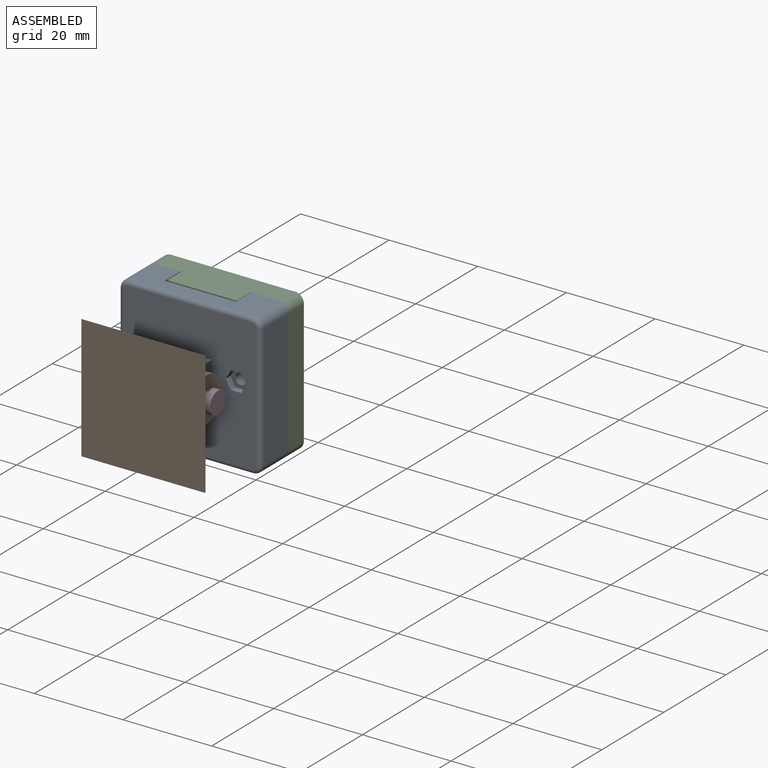
[diagram: assembled view]
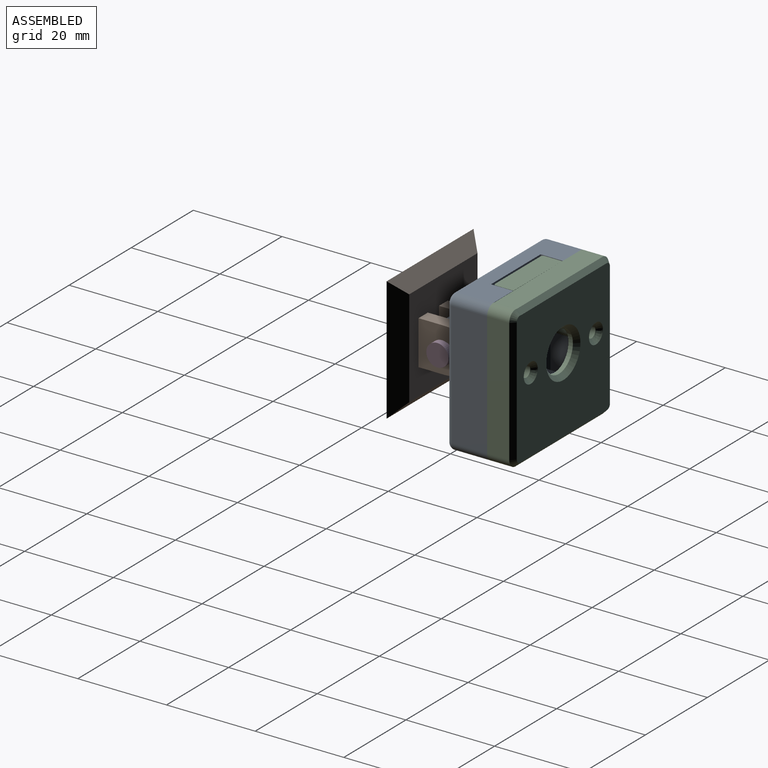
[diagram: assembled view, second angle]
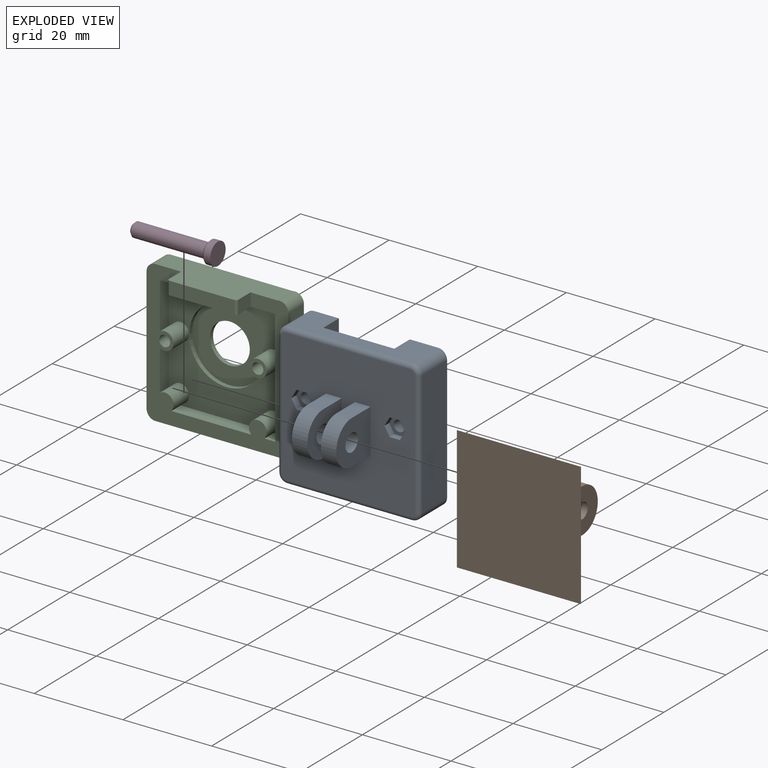
[diagram: exploded view]
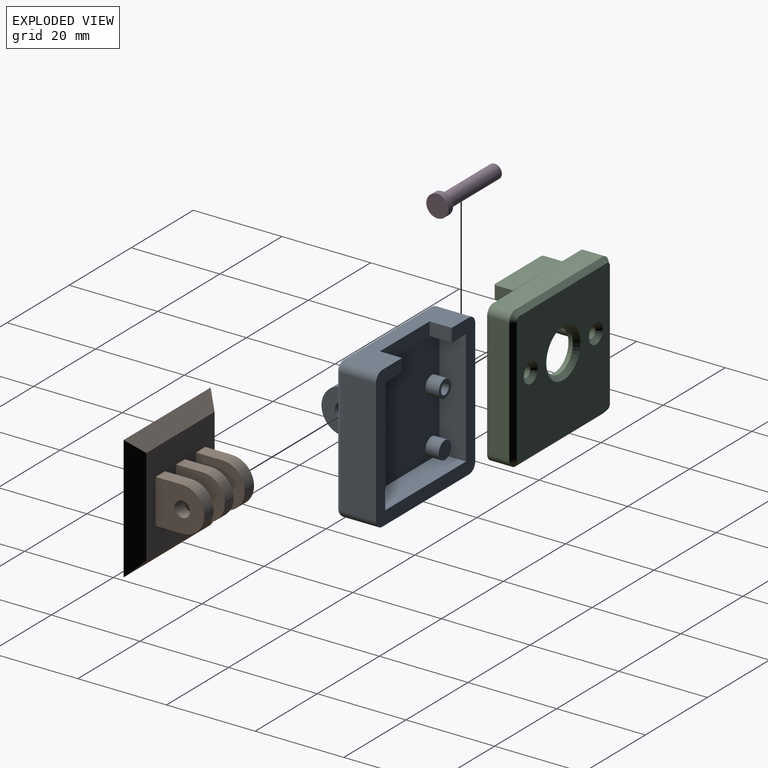
[diagram: exploded view, second angle]
ASSEMBLY  parts=4 mates=3
PART A: 62 faces, bbox 32.3x32.3x20 mm
  f0: plane 30x30mm, normal (0,0,-1), area 801.4mm2, adj f28,f29,f30,f31,f32,f33,f34,f35
  f1: cylinder r=1.25mm len=4.5mm, axis (0,0,-1), area 35.3mm2, adj f14,f61
  f2: cylinder r=1.25mm len=4.5mm, axis (0,0,-1), area 35.3mm2, adj f16,f54
  f3: plane 32x32mm, normal (0,0,1), area 296.6mm2, adj f4,f6,f7,f8,f9,f10,f11,f12
  f4: plane 28x8mm, normal (0,-1,0), area 144mm2, adj f3,f21,f22,f23,f26,f27,f44
  f5: plane 26x26mm, normal (0,0,1), area 625.7mm2, adj f6,f7,f8,f9,f13,f15,f17,f19
  f6: plane 26x6mm, normal (0,-1,0), area 156mm2, adj f3,f5,f7,f9
  f7: plane 26x6mm, normal (1,0,0), area 156mm2, adj f3,f5,f6,f8
  f8: plane 26x6mm, normal (0,1,0), area 76mm2, adj f3,f5,f7,f9,f21,f22,f23
  f9: plane 26x6mm, normal (-1,0,0), area 156mm2, adj f3,f5,f6,f8
  f10: plane 28x8mm, normal (1,0,0), area 224mm2, adj f3,f24,f27,f40
  f11: plane 28x8mm, normal (0,1,0), area 224mm2, adj f3,f24,f25,f43
  f12: plane 28x8mm, normal (-1,0,0), area 224mm2, adj f3,f25,f26,f47
  f13: cylinder r=2mm len=4mm, axis (0,0,-1), area 37.7mm2, adj f5,f14
  f14: plane 4x4mm, normal (0,0,1), area 7.7mm2, adj f1,f13
  f15: cylinder r=2mm len=4mm, axis (0,0,-1), area 37.7mm2, adj f5,f16
  f16: plane 4x4mm, normal (0,0,1), area 7.7mm2, adj f2,f15
  f17: cylinder r=2mm len=4mm, axis (0,0,-1), area 37.7mm2, adj f5,f18
  f18: plane 4x4mm, normal (0,0,1), area 12.6mm2, adj f17
  f19: cylinder r=2mm len=4mm, axis (0,0,-1), area 37.7mm2, adj f5,f20
  f20: plane 4x4mm, normal (0,0,1), area 12.6mm2, adj f19
  f21: plane 5x3mm, normal (1,0,0), area 15mm2, adj f3,f4,f8,f22
  f22: plane 16x3mm, normal (0,0,1), area 48mm2, adj f4,f8,f21,f23
  f23: plane 5x3mm, normal (-1,0,0), area 15mm2, adj f3,f4,f8,f22
  f24: cylinder r=2mm len=8mm, axis (0,0,-1), area 25.1mm2, adj f3,f10,f11,f41
  f25: cylinder r=2mm len=8mm, axis (0,0,1), area 25.1mm2, adj f3,f11,f12,f45
  f26: cylinder r=2mm len=8mm, axis (0,0,-1), area 25.1mm2, adj f3,f4,f12,f46
  f27: cylinder r=2mm len=8mm, axis (0,0,1), area 25.1mm2, adj f3,f4,f10,f42
  f28: plane 11x10mm, normal (1,0,0), area 86.7mm2, adj f0,f29,f31,f37,f39
  f29: plane 6x3.5mm, normal (0,1,0), area 21mm2, adj f0,f28,f30,f37
  f30: plane 11x10mm, normal (-1,0,0), area 86.7mm2, adj f0,f29,f31,f37,f39
  f31: plane 6x3.5mm, normal (0,-1,0), area 21mm2, adj f0,f28,f30,f37
  f32: plane 11x10mm, normal (1,0,0), area 86.7mm2, adj f0,f33,f35,f36,f38
  f33: plane 6x3.5mm, normal (0,1,0), area 21mm2, adj f0,f32,f34,f36
  f34: plane 11x10mm, normal (-1,0,0), area 86.7mm2, adj f0,f33,f35,f36,f38
  f35: plane 6x3.5mm, normal (0,-1,0), area 21mm2, adj f0,f32,f34,f36
  f36: cylinder r=5mm len=10mm, axis (-1,0,0), area 55mm2, adj f32,f33,f34,f35
  f37: cylinder r=5mm len=10mm, axis (-1,0,0), area 55mm2, adj f28,f29,f30,f31
  f38: cylinder r=2mm len=4mm, axis (1,0,0), area 44mm2, adj f32,f34
  f39: cylinder r=2mm len=4mm, axis (1,0,0), area 44mm2, adj f28,f30
  f40: cylinder r=1mm len=28mm, axis (0,1,0), area 44mm2, adj f0,f10,f41,f42
  f41: torus R=1mm, axis (0,0,1), area 4mm2, adj f0,f24,f40,f43
  f42: torus R=1mm, axis (0,0,1), area 4mm2, adj f0,f27,f40,f44
  f43: cylinder r=1mm len=28mm, axis (-1,0,0), area 44mm2, adj f0,f11,f41,f45
  f44: cylinder r=1mm len=28mm, axis (1,0,0), area 44mm2, adj f0,f4,f42,f46
  f45: torus R=1mm, axis (0,0,1), area 4mm2, adj f0,f25,f43,f47
  f46: torus R=1mm, axis (0,0,1), area 4mm2, adj f0,f26,f44,f47
  f47: cylinder r=1mm len=28mm, axis (0,-1,0), area 44mm2, adj f0,f12,f45,f46
  f48: plane 2.31x1.5mm, normal (0,1,0), area 3.5mm2, adj f0,f49,f53,f54
  f49: plane 2x1.5mm, normal (0.87,0.5,0), area 3.5mm2, adj f0,f48,f50,f54
  f50: plane 2x1.5mm, normal (0.87,-0.5,0), area 3.5mm2, adj f0,f49,f51,f54
  f51: plane 2.31x1.5mm, normal (0,-1,0), area 3.5mm2, adj f0,f50,f52,f54
  f52: plane 2x1.5mm, normal (-0.87,-0.5,0), area 3.5mm2, adj f0,f51,f53,f54
  f53: plane 2x1.5mm, normal (-0.87,0.5,0), area 3.5mm2, adj f0,f48,f52,f54
  f54: plane 4.62x4mm, normal (0,0,-1), area 8.9mm2, adj f2,f48,f49,f50,f51,f52,f53
  f55: plane 2.31x1.5mm, normal (0,1,0), area 3.5mm2, adj f0,f56,f60,f61
  f56: plane 2x1.5mm, normal (0.87,0.5,0), area 3.5mm2, adj f0,f55,f57,f61
  f57: plane 2x1.5mm, normal (0.87,-0.5,0), area 3.5mm2, adj f0,f56,f58,f61
  f58: plane 2.31x1.5mm, normal (0,-1,0), area 3.5mm2, adj f0,f57,f59,f61
  f59: plane 2x1.5mm, normal (-0.87,-0.5,0), area 3.5mm2, adj f0,f58,f60,f61
  f60: plane 2x1.5mm, normal (-0.87,0.5,0), area 3.5mm2, adj f0,f55,f59,f61
  f61: plane 4.62x4mm, normal (0,0,-1), area 8.9mm2, adj f1,f55,f56,f57,f58,f59,f60
PART B: 24 faces, bbox 28x28x14 mm
  f0: plane 22x22mm, normal (0,0,-1), area 396mm2, adj f2,f3,f4,f5,f6,f7,f8,f9
  f1: plane 28x28mm, normal (0,0,1), area 784mm2, adj f2,f3,f4,f5
  f2: plane 28x3mm, normal (0.71,0,-0.71), area 106.1mm2, adj f0,f1,f3,f4
  f3: plane 28x3mm, normal (0,-0.71,-0.71), area 106.1mm2, adj f0,f1,f2,f5
  f4: plane 28x3mm, normal (0,0.71,-0.71), area 106.1mm2, adj f0,f1,f2,f5
  f5: plane 28x3mm, normal (-0.71,0,-0.71), area 106.1mm2, adj f0,f1,f3,f4
  f6: plane 6x2.8mm, normal (0,-1,0), area 16.8mm2, adj f0,f7,f9,f19
  f7: plane 11x10mm, normal (-1,0,0), area 89.6mm2, adj f0,f6,f8,f19,f23
  f8: plane 6x2.8mm, normal (0,1,0), area 16.8mm2, adj f0,f7,f9,f19
  f9: plane 11x10mm, normal (1,0,0), area 89.6mm2, adj f0,f6,f8,f19,f23
  f10: plane 11x10mm, normal (1,0,0), area 89.6mm2, adj f0,f11,f13,f20,f22
  f11: plane 6x3mm, normal (0,-1,0), area 18mm2, adj f0,f10,f12,f20
  f12: plane 11x10mm, normal (-1,0,0), area 89.6mm2, adj f0,f11,f13,f20,f22
  f13: plane 6x3mm, normal (0,1,0), area 18mm2, adj f0,f10,f12,f20
  f14: plane 6x3mm, normal (0,-1,0), area 18mm2, adj f0,f15,f17,f18
  f15: plane 11x10mm, normal (-1,0,0), area 89.6mm2, adj f0,f14,f16,f18,f21
  f16: plane 6x3mm, normal (0,1,0), area 18mm2, adj f0,f15,f17,f18
  f17: plane 11x10mm, normal (1,0,0), area 89.6mm2, adj f0,f14,f16,f18,f21
  f18: cylinder r=5mm len=10mm, axis (1,0,0), area 47.1mm2, adj f14,f15,f16,f17
  f19: cylinder r=5mm len=10mm, axis (1,0,0), area 44mm2, adj f6,f7,f8,f9
  f20: cylinder r=5mm len=10mm, axis (-1,0,0), area 47.1mm2, adj f10,f11,f12,f13
  f21: cylinder r=1.75mm len=3.5mm, axis (1,0,0), area 33mm2, adj f15,f17
  f22: cylinder r=1.75mm len=3.5mm, axis (1,0,0), area 33mm2, adj f10,f12
  f23: cylinder r=1.75mm len=3.5mm, axis (1,0,0), area 30.8mm2, adj f7,f9
PART C: 48 faces, bbox 32x32x10.5 mm
  f0: cylinder r=4.5mm len=9mm, axis (0,0,1), area 28.3mm2, adj f28,f40
  f1: plane 26x26mm, normal (0,0,-1), area 398.8mm2, adj f3,f4,f5,f14,f17,f20,f23,f25
  f2: plane 30x30mm, normal (0,0,1), area 771.6mm2, adj f29,f30,f31,f32,f33,f34,f35,f36
  f3: plane 26x3mm, normal (0,-1,0), area 78mm2, adj f1,f4,f5,f16
  f4: plane 26x3mm, normal (1,0,0), area 78mm2, adj f1,f3,f14,f16
  f5: plane 26x3mm, normal (-1,0,0), area 78mm2, adj f1,f3,f14,f16
  f6: plane 28x5mm, normal (1,0,0), area 140mm2, adj f7,f15,f16,f35
  f7: cylinder r=2mm len=5mm, axis (0,0,1), area 15.7mm2, adj f6,f8,f16,f33
  f8: plane 28x5mm, normal (0,1,0), area 140mm2, adj f7,f9,f16,f31
  f9: cylinder r=2mm len=5mm, axis (0,0,1), area 15.7mm2, adj f8,f10,f16,f32
  f10: plane 28x5mm, normal (-1,0,0), area 140mm2, adj f9,f11,f16,f34
  f11: cylinder r=2mm len=5mm, axis (0,0,1), area 15.7mm2, adj f10,f12,f16,f36
  f12: plane 5.6x5mm, normal (0,-1,0), area 28mm2, adj f11,f13,f16,f38
  f13: plane 21.92x5mm, normal (0,-1,0), area 109.6mm2, adj f12,f15,f16,f39,f41
  f14: plane 26x7.5mm, normal (0,1,0), area 148.5mm2, adj f1,f4,f5,f16,f43,f44,f45,f46
  f15: cylinder r=2mm len=5mm, axis (0,0,1), area 18.2mm2, adj f6,f13,f16,f37
  f16: plane 32x32mm, normal (0,0,-1), area 297.1mm2, adj f3,f4,f5,f6,f7,f8,f9,f10
  f17: cylinder r=2mm len=5mm, axis (0,0,1), area 62.8mm2, adj f1,f19
  f18: cylinder r=1.25mm len=7mm, axis (0,0,1), area 55mm2, adj f19,f30
  f19: plane 4x4mm, normal (0,0,-1), area 7.7mm2, adj f17,f18
  f20: cylinder r=2mm len=5mm, axis (0,0,1), area 62.8mm2, adj f1,f22
  f21: cylinder r=1.25mm len=7mm, axis (0,0,1), area 55mm2, adj f22,f29
  f22: plane 4x4mm, normal (0,0,-1), area 7.7mm2, adj f20,f21
  f23: cylinder r=2mm len=5mm, axis (0,0,1), area 62.8mm2, adj f1,f24
  f24: plane 4x4mm, normal (0,0,-1), area 12.6mm2, adj f23
  f25: cylinder r=2mm len=5mm, axis (0,0,1), area 62.8mm2, adj f1,f26
  f26: plane 4x4mm, normal (0,0,-1), area 12.6mm2, adj f25
  f27: cylinder r=8.5mm len=17mm, axis (0,0,-1), area 53.4mm2, adj f1,f28
  f28: plane 17x17mm, normal (0,0,-1), area 163.4mm2, adj f0,f27
  f29: cone r=1.25mm half-angle=45deg, axis (0,0,1), area 15.6mm2, adj f2,f21
  f30: cone r=1.25mm half-angle=45deg, axis (0,0,1), area 15.6mm2, adj f2,f18
  f31: plane 28x1mm, normal (0,0.71,0.71), area 39.6mm2, adj f2,f8,f32,f33
  f32: cone r=1mm half-angle=45deg, axis (0,0,-1), area 3.3mm2, adj f2,f9,f31,f34
  f33: cone r=1mm half-angle=45deg, axis (0,0,-1), area 3.3mm2, adj f2,f7,f31,f35
  f34: plane 28x1mm, normal (-0.71,0,0.71), area 39.6mm2, adj f2,f10,f32,f36
  f35: plane 28x1mm, normal (0.71,0,0.71), area 39.6mm2, adj f2,f6,f33,f37
  f36: cone r=1mm half-angle=45deg, axis (0,0,-1), area 3.3mm2, adj f2,f11,f34,f38
  f37: cone r=1mm half-angle=45deg, axis (0,0,-1), area 3.9mm2, adj f2,f15,f35,f39
  f38: plane 5.6x1mm, normal (0,-0.71,0.71), area 7.9mm2, adj f2,f12,f36,f39
  f39: plane 22.1x1.1mm, normal (0,-0.71,0.71), area 31.1mm2, adj f2,f13,f37,f38
  f40: cone r=4.5mm half-angle=45deg, axis (0,0,1), area 44.4mm2, adj f0,f2
  f41: plane 15.7x0.04mm, normal (0,0,1), area 0.3mm2, adj f13,f42,f44
  f42: plane 15.7x4.5mm, normal (0,-1,0), area 70.5mm2, adj f41,f43,f44,f45,f46,f47
  f43: plane 4x3mm, normal (-1,0,0), area 12mm2, adj f14,f16,f42,f47
  f44: plane 4x3mm, normal (1,0,0), area 12mm2, adj f14,f16,f41,f42,f46
  f45: plane 14.7x3mm, normal (0,0,-1), area 44.1mm2, adj f14,f42,f46,f47
  f46: cylinder r=0.5mm len=3mm, axis (0,1,0), area 2.4mm2, adj f14,f42,f44,f45
  f47: cylinder r=0.5mm len=3mm, axis (0,-1,0), area 2.4mm2, adj f14,f42,f43,f45
PART D: 7 faces, bbox 5x5x19 mm
  f0: cylinder r=2.5mm len=5mm, axis (0,0,1), area 23.6mm2, adj f2,f3
  f1: plane 4x4mm, normal (0,0,-1), area 4.5mm2, adj f3,f4
  f2: plane 5x5mm, normal (0,0,1), area 19.6mm2, adj f0
  f3: cone r=2.5mm half-angle=45deg, axis (0,0,1), area 10mm2, adj f0,f1
  f4: cylinder r=1.6mm len=16.5mm, axis (0,0,1), area 165.9mm2, adj f1,f6
  f5: plane 2.2x2.2mm, normal (0,0,-1), area 3.8mm2, adj f6
  f6: cone r=1.1mm half-angle=45deg, axis (0,0,1), area 6mm2, adj f4,f5
PLACE A rot(axis=(-1,0,0),90deg) t=(-15,0,2)mm
PLACE B rot(axis=(1,0,0),90deg) t=(42.27,-15,-12)mm
PLACE C rot(axis=(-1,0,0),90deg) t=(-15,-19,2)mm
PLACE D rot(axis=(0,1,0),90deg) t=(-4.4,14.72,-55.53)mm
MATE fastened C.f16 <-> A.f3  axis (0,1,0) through (-1,9,-14)mm
MATE fastened B.f18 <-> A.f38  axis (1,0,0) through (-13.5,-6,2)mm
MATE pin_slot D.f0 <-> B.f18  axis (-1,0,0) through (-22.9,-6,2)mm
